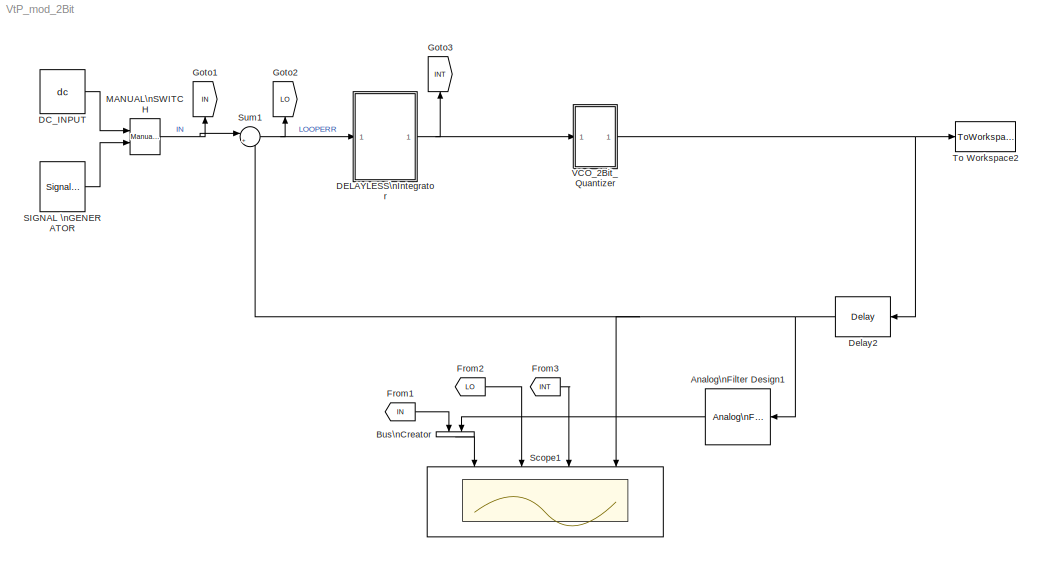
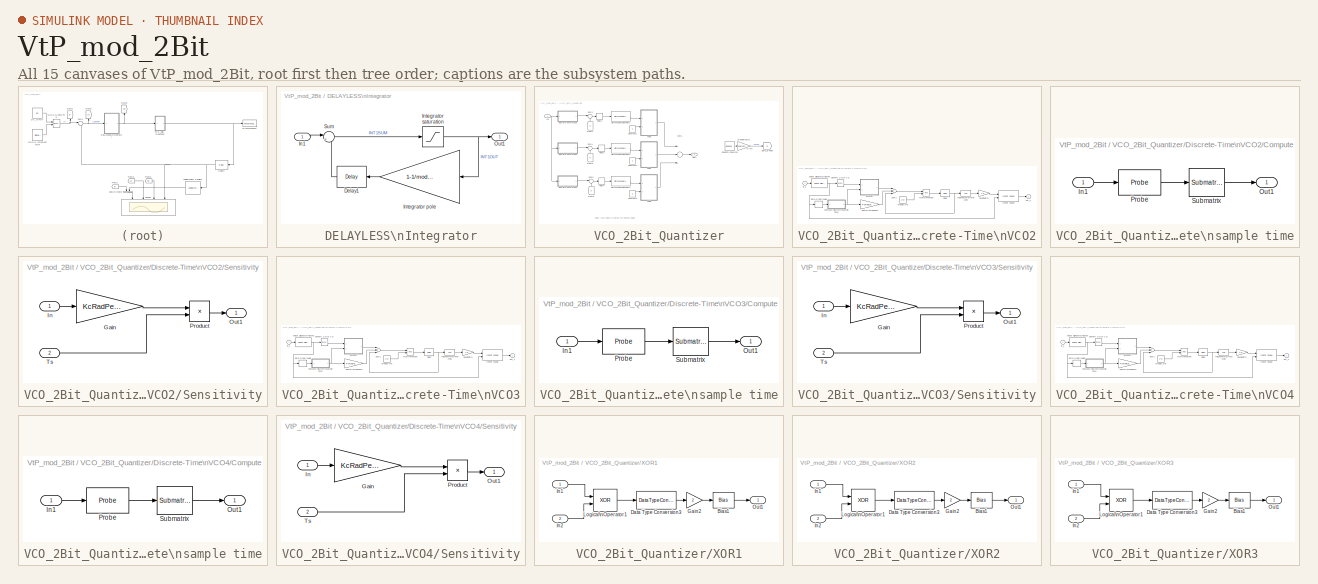
[diagram: thumbnail index - all 15 canvases of the model, root first then tree order]
MODEL VtP_mod_2Bit
KIND model
BLOCK [Reference] Analog\nFilter Design1  REF=dsparch4/Analog\nFilter Design
  N = 8
  Ports = [1, 1]
  Rp = 2
  Rs = 40
  SID = 500
  SourceBlock = dsparch4/Analog\nFilter Design
  SourceType = Analog Filter Design
  Whi = 80
  Wlo = pi*(Fs/OSR)
  filttype = Lowpass
  method = Butterworth
BLOCK [BusCreator] Bus\nCreator
  DisplayOption = bar
  Inputs = 2
  Ports = [2, 1]
  SID = 501
BLOCK [Constant] DC_INPUT
  OutDataTypeStr = double
  SID = 464
  SampleTime = 1/Fs
  Value = dc
  VectorParams1D = off
BLOCK [SubSystem] DELAYLESS\nIntegrator
  FunctionWithSeparateData = off
  MaskHideContents = off
  MinAlgLoopOccurrences = off
  Opaque = off
  Ports = [1, 1]
  PropExecContextOutsideSubsystem = off
  RTWSystemCode = Auto
  RequestExecContextInheritance = off
  SID = 472
BLOCK [Reference] DELAYLESS\nIntegrator/Delay1  REF=dspsigops/Delay
  InputProcessing = Inherited (this choice will be removed - see release notes)
  Ports = [1, 1]
  SID = 474
  SourceBlock = dspsigops/Delay
  SourceType = Delay
  UserData = DataTag0
  UserDataPersistent = on
  delay = 1
  dif_ic_for_ch = off
  dif_ic_for_dly = off
  dly_unit = Samples
  ic = 0
  ic_detail = off
  reset_popup = None
BLOCK [Inport] DELAYLESS\nIntegrator/In1
  IconDisplay = Port number
  SID = 473
BLOCK [Gain] DELAYLESS\nIntegrator/Integrator pole
  AttributesFormatString = (model finite dc gain)
  Gain = 1-1/mod.igain1
  OutDataTypeStr = Inherit: Inherit via internal rule
  ParamDataTypeStr = Inherit: Inherit via internal rule
  SID = 475
  SaturateOnIntegerOverflow = off
BLOCK [Saturate] DELAYLESS\nIntegrator/Integrator saturation
  InputPortMap = u0
  LowerLimit = -(mod.isat1)
  Ports = [1, 1]
  SID = 476
  UpperLimit = mod.isat1
BLOCK [Outport] DELAYLESS\nIntegrator/Out1
  IconDisplay = Port number
  SID = 478
BLOCK [Sum] DELAYLESS\nIntegrator/Sum
  AttributesFormatString = Integrator summer
  IconShape = round
  InputSameDT = off
  Inputs = |++
  OutDataTypeStr = Inherit: Inherit via internal rule
  Ports = [2, 1]
  SID = 477
  SampleTime = 1/Fs
  SaturateOnIntegerOverflow = off
BLOCK [Reference] Delay2  REF=dspsigops/Delay
  InputProcessing = Inherited (this choice will be removed - see release notes)
  Ports = [1, 1]
  SID = 399
  SourceBlock = dspsigops/Delay
  SourceType = Delay
  UserData = DataTag1
  UserDataPersistent = on
  delay = 1
  dif_ic_for_ch = off
  dif_ic_for_dly = off
  dly_unit = Samples
  ic = 0
  ic_detail = off
  reset_popup = None
BLOCK [From] From1
  GotoTag = IN
  SID = 502
BLOCK [From] From2
  GotoTag = LO
  SID = 503
BLOCK [From] From3
  GotoTag = INT
  SID = 504
BLOCK [Goto] Goto1
  GotoTag = IN
  SID = 204
BLOCK [Goto] Goto2
  GotoTag = LO
  SID = 205
BLOCK [Goto] Goto3
  GotoTag = INT
  SID = 508
BLOCK [Reference] MANUAL\nSWITCH  REF=simulink/Signal\nRouting/Manual Switch
  AttributesFormatString = Double click to\\nselect the desired\\ninput
  Ports = [2, 1]
  SID = 465
  SourceBlock = simulink/Signal\nRouting/Manual Switch
  SourceType = Manual Switch
  action = 0
  sw = 0
  varsize = off
BLOCK [SignalGenerator] SIGNAL \nGENERATOR
  Amplitude = sinamp
  Frequency = sinfreq
  Ports = [0, 1]
  SID = 466
  VectorParams1D = off
BLOCK [Scope] Scope1
  DataFormat = StructureWithTime
  Floating = off
  NumInputPorts = 4
  Ports = [4]
  SID = 505
  SampleTime = 0
  ShowLegends = off
  TimeRange = 2.089895171320487e-05
  YMax = 1.1~1.6~1.6~0.1
  YMin = -1.1~-0.6~-0.6~-0.3
  ZoomMode = xonly
BLOCK [Sum] Sum1
  IconShape = round
  InputSameDT = off
  Inputs = |+-
  OutDataTypeStr = Inherit: Inherit via internal rule
  Ports = [2, 1]
  SID = 7
  SampleTime = 1/Fs
  SaturateOnIntegerOverflow = off
BLOCK [ToWorkspace] To Workspace2
  MaxDataPoints = inf
  Ports = [1]
  SID = 208
  SampleTime = -1
  VariableName = mod_out
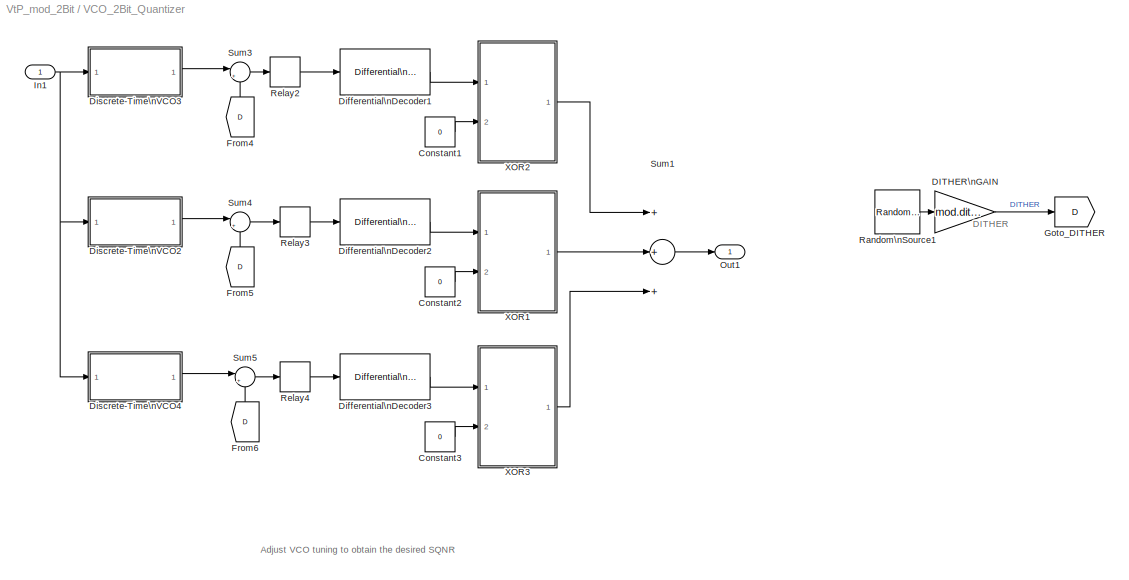
BLOCK [SubSystem] VCO_2Bit_Quantizer
  FunctionWithSeparateData = off
  MaskHideContents = off
  MinAlgLoopOccurrences = off
  Opaque = off
  Ports = [1, 1]
  PropExecContextOutsideSubsystem = off
  RTWSystemCode = Auto
  RequestExecContextInheritance = off
  SID = 564
BLOCK [Constant] VCO_2Bit_Quantizer/Constant1
  OutDataTypeStr = boolean
  SID = 482
  SampleTime = 1/Fs
  Value = 0
  VectorParams1D = off
BLOCK [Constant] VCO_2Bit_Quantizer/Constant2
  OutDataTypeStr = boolean
  SID = 542
  SampleTime = 1/Fs
  Value = 0
  VectorParams1D = off
BLOCK [Constant] VCO_2Bit_Quantizer/Constant3
  OutDataTypeStr = boolean
  SID = 553
  SampleTime = 1/Fs
  Value = 0
  VectorParams1D = off
BLOCK [Gain] VCO_2Bit_Quantizer/DITHER\nGAIN
  Gain = mod.dither
  OutDataTypeStr = Inherit: Inherit via internal rule
  ParamDataTypeStr = Inherit: Inherit via internal rule
  SID = 468
  SampleTime = 1/Fs
  SaturateOnIntegerOverflow = off
BLOCK [Reference] VCO_2Bit_Quantizer/Differential\nDecoder1  REF=commsrccod2/Differential\nDecoder
  InitCond = 0
  Ports = [1, 1]
  SID = 483
  SourceBlock = commsrccod2/Differential\nDecoder
  SourceType = Differential Decoder
BLOCK [Reference] VCO_2Bit_Quantizer/Differential\nDecoder2  REF=commsrccod2/Differential\nDecoder
  InitCond = 0
  Ports = [1, 1]
  SID = 543
  SourceBlock = commsrccod2/Differential\nDecoder
  SourceType = Differential Decoder
BLOCK [Reference] VCO_2Bit_Quantizer/Differential\nDecoder3  REF=commsrccod2/Differential\nDecoder
  InitCond = 0
  Ports = [1, 1]
  SID = 554
  SourceBlock = commsrccod2/Differential\nDecoder
  SourceType = Differential Decoder
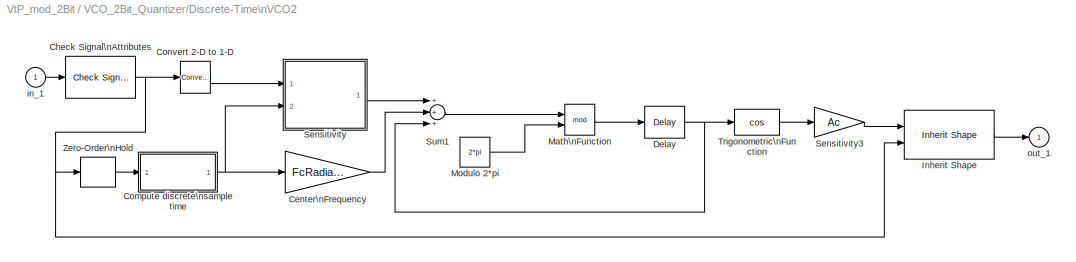
BLOCK [SubSystem] VCO_2Bit_Quantizer/Discrete-Time\nVCO2
  AncestorBlock = commsynccomp2/Discrete-Time\nVCO
  FunctionWithSeparateData = off
  MaskCallbackString = ||||
  MaskCapabilities = commmaskedcaps(gcbh)
  MaskDescription = Generate a discrete-time output signal whose frequency changes in response to the amplitude variations of the input signal. The input signal must be a scalar.
  MaskDisplay = disp('Discrete-Time\\nVCO')
  MaskEnableString = on,on,on,on,on
  MaskHelp = helpview(commbhelp)
  MaskHideContents = off
  MaskIconFrame = on
  MaskIconOpaque = on
  MaskIconRotate = none
  MaskIconUnits = autoscale
  MaskInitialization = if ( (length(Ac)~=1) || (length(Fc)~=1) || (length(Kc)~=1) || (length(Ph)~=1) || (length(ts)~=1) ) \n	error('commblks:DiscTimeVCO:InvalidMaskParams',...\n          'Mask parameters must be scalar values.');\nend\nFcRadians = 2*pi*Fc;\nKcRadPerV = 2*pi*Kc;\n  <repeated x3 — deduplicated; at blocks: Discrete-Time\nVCO2, Discrete-Time\nVCO3, Discrete-Time\nVCO4>
  MaskPortRotate = default
  MaskPromptString = Output amplitude (V):|Quiescent frequency (Hz):|Input sensitivity (Hz/V):|Initial phase (rad):|Sample time (s):
  MaskSelfModifiable = on
  MaskStyleString = edit,edit,edit,edit,edit
  MaskToolTipString = on,on,on,on,on
  MaskTunableValueString = on,on,on,on,on
  MaskType = Discrete-Time VCO
  MaskValueString = sinamp*2|Fs/100|sinfreq*5|1.571|1/Fs
  MaskVariables = Ac=@1;Fc=@2;Kc=@3;Ph=@4;ts=@5;
  MaskVisibilityString = on,on,on,on,on
  MinAlgLoopOccurrences = off
  Opaque = off
  Ports = [1, 1]
  PropExecContextOutsideSubsystem = off
  RTWSystemCode = Auto
  RequestExecContextInheritance = off
  SID = 509
BLOCK [Gain] VCO_2Bit_Quantizer/Discrete-Time\nVCO2/Center\nFrequency
  Gain = FcRadians
  OutDataTypeStr = Inherit: Inherit via back propagation
  ParamDataTypeStr = float('double')
  RndMeth = Nearest
  SID = 509:2
  SampleTime = ts
BLOCK [Reference] VCO_2Bit_Quantizer/Discrete-Time\nVCO2/Check Signal\nAttributes  REF=dspsigattribs/Check Signal\nAttributes
  Complexity = Ignore
  DatatypeCheckMethod = Is...
  DatatypeGeneral = Floating-point
  Dimensions = Scalar (1-D or 2-D)
  DimsCheckMethod = Is...
  DtypeFixedSpecific = Any fixed-point
  DtypeFloatSpecific = Any floating-point
  DtypeIntSpecific = Any integer
  Frame = Ignore
  Ports = [1, 1]
  SID = 509:3
  SampleMode = Discrete
  SigAttribCheckMethod = Does not match attributes exactly
  SourceBlock = dspsigattribs/Check Signal\nAttributes
  SourceType = Check Signal Attributes
BLOCK [SubSystem] VCO_2Bit_Quantizer/Discrete-Time\nVCO2/Compute discrete\nsample time
  FunctionWithSeparateData = off
  MaskHideContents = off
  MinAlgLoopOccurrences = off
  Opaque = off
  Ports = [1, 1]
  PropExecContextOutsideSubsystem = off
  RTWSystemCode = Auto
  RequestExecContextInheritance = off
  SID = 509:4
BLOCK [Inport] VCO_2Bit_Quantizer/Discrete-Time\nVCO2/Compute discrete\nsample time/In1
  IconDisplay = Port number
  SID = 509:5
BLOCK [Outport] VCO_2Bit_Quantizer/Discrete-Time\nVCO2/Compute discrete\nsample time/Out1
  IconDisplay = Port number
  SID = 509:8
BLOCK [Probe] VCO_2Bit_Quantizer/Discrete-Time\nVCO2/Compute discrete\nsample time/Probe
  Ports = [1, 1]
  ProbeComplexSignal = off
  ProbeWidth = off
  SID = 509:6
BLOCK [Reference] VCO_2Bit_Quantizer/Discrete-Time\nVCO2/Compute discrete\nsample time/Submatrix  REF=dspmtrx3/Submatrix
  ColEndIndex = 1
  ColEndMode = Last
  ColSpan = One column
  ColStartIndex = 1
  ColStartMode = First
  Ports = [1, 1]
  RowEndIndex = 1
  RowEndMode = Last
  RowSpan = One row
  RowStartIndex = 1
  RowStartMode = First
  SID = 509:7
  SourceBlock = dspmtrx3/Submatrix
  SourceType = Submatrix
BLOCK [Reference] VCO_2Bit_Quantizer/Discrete-Time\nVCO2/Convert 2-D to 1-D  REF=dspsigattribs/Convert 2-D to 1-D
  Ports = [1, 1]
  SID = 509:9
  SourceBlock = dspsigattribs/Convert 2-D to 1-D
  SourceType = Convert 2-D to 1-D
BLOCK [Reference] VCO_2Bit_Quantizer/Discrete-Time\nVCO2/Delay  REF=dspsigops/Delay
  InputProcessing = Columns as channels (frame based)
  Ports = [1, 1]
  SID = 509:10
  SourceBlock = dspsigops/Delay
  SourceType = Delay
  UserData = DataTag2
  UserDataPersistent = on
  delay = 1
  dif_ic_for_ch = off
  dif_ic_for_dly = off
  dly_unit = Samples
  ic = Ph
  ic_detail = on
  reset_popup = None
BLOCK [Reference] VCO_2Bit_Quantizer/Discrete-Time\nVCO2/Inherit Shape  REF=commblksprivate/Inherit Shape
  Ports = [2, 1]
  SID = 509:11
  SourceBlock = commblksprivate/Inherit Shape
  SourceType = Inherit Shape
BLOCK [Math] VCO_2Bit_Quantizer/Discrete-Time\nVCO2/Math\nFunction
  Operator = mod
  Ports = [2, 1]
  SID = 509:12
BLOCK [Constant] VCO_2Bit_Quantizer/Discrete-Time\nVCO2/Modulo 2*pi
  OutDataTypeStr = Inherit: Inherit via back propagation
  SID = 509:13
  SampleTime = ts
  Value = 2*pi
BLOCK [SubSystem] VCO_2Bit_Quantizer/Discrete-Time\nVCO2/Sensitivity
  FunctionWithSeparateData = off
  MaskHideContents = off
  MinAlgLoopOccurrences = off
  Opaque = off
  Ports = [2, 1]
  PropExecContextOutsideSubsystem = off
  RTWSystemCode = Auto
  RequestExecContextInheritance = off
  SID = 509:14
BLOCK [Gain] VCO_2Bit_Quantizer/Discrete-Time\nVCO2/Sensitivity/Gain
  Gain = KcRadPerV
  ParamDataTypeStr = float('double')
  SID = 509:17
BLOCK [Inport] VCO_2Bit_Quantizer/Discrete-Time\nVCO2/Sensitivity/In
  IconDisplay = Port number
  SID = 509:15
BLOCK [Outport] VCO_2Bit_Quantizer/Discrete-Time\nVCO2/Sensitivity/Out1
  IconDisplay = Port number
  SID = 509:19
BLOCK [Product] VCO_2Bit_Quantizer/Discrete-Time\nVCO2/Sensitivity/Product
  InputSameDT = off
  Ports = [2, 1]
  RndMeth = Nearest
  SID = 509:18
BLOCK [Inport] VCO_2Bit_Quantizer/Discrete-Time\nVCO2/Sensitivity/Ts
  IconDisplay = Port number
  Port = 2
  SID = 509:16
BLOCK [Gain] VCO_2Bit_Quantizer/Discrete-Time\nVCO2/Sensitivity3
  Gain = Ac
  SID = 509:20
BLOCK [Sum] VCO_2Bit_Quantizer/Discrete-Time\nVCO2/Sum1
  Inputs = +++
  Ports = [3, 1]
  SID = 509:21
BLOCK [Trigonometry] VCO_2Bit_Quantizer/Discrete-Time\nVCO2/Trigonometric\nFunction
  Operator = cos
  Ports = [1, 1]
  SID = 509:22
BLOCK [ZeroOrderHold] VCO_2Bit_Quantizer/Discrete-Time\nVCO2/Zero-Order\nHold
  SID = 509:23
  SampleTime = ts
BLOCK [Inport] VCO_2Bit_Quantizer/Discrete-Time\nVCO2/in_1
  IconDisplay = Port number
  SID = 509:1
BLOCK [Outport] VCO_2Bit_Quantizer/Discrete-Time\nVCO2/out_1
  IconDisplay = Port number
  InitialOutput = 0
  SID = 509:24
BLOCK [SubSystem] VCO_2Bit_Quantizer/Discrete-Time\nVCO3
  AncestorBlock = commsynccomp2/Discrete-Time\nVCO
  FunctionWithSeparateData = off
  MaskCallbackString = ||||
  MaskCapabilities = commmaskedcaps(gcbh)
  MaskDescription = Generate a discrete-time output signal whose frequency changes in response to the amplitude variations of the input signal. The input signal must be a scalar.
  MaskDisplay = disp('Discrete-Time\\nVCO')
  MaskEnableString = on,on,on,on,on
  MaskHelp = helpview(commbhelp)
  MaskHideContents = off
  MaskIconFrame = on
  MaskIconOpaque = on
  MaskIconRotate = none
  MaskIconUnits = autoscale
  MaskPortRotate = default
  MaskPromptString = Output amplitude (V):|Quiescent frequency (Hz):|Input sensitivity (Hz/V):|Initial phase (rad):|Sample time (s):
  MaskSelfModifiable = on
  MaskStyleString = edit,edit,edit,edit,edit
  MaskToolTipString = on,on,on,on,on
  MaskTunableValueString = on,on,on,on,on
  MaskType = Discrete-Time VCO
  MaskValueString = 7|Fs/100|sinfreq*5|0|1/Fs
  MaskVariables = Ac=@1;Fc=@2;Kc=@3;Ph=@4;ts=@5;
  MaskVisibilityString = on,on,on,on,on
  MinAlgLoopOccurrences = off
  Opaque = off
  Ports = [1, 1]
  PropExecContextOutsideSubsystem = off
  RTWSystemCode = Auto
  RequestExecContextInheritance = off
  SID = 510
BLOCK [Gain] VCO_2Bit_Quantizer/Discrete-Time\nVCO3/Center\nFrequency
  Gain = FcRadians
  OutDataTypeStr = Inherit: Inherit via back propagation
  ParamDataTypeStr = float('double')
  RndMeth = Nearest
  SID = 510:2
  SampleTime = ts
BLOCK [Reference] VCO_2Bit_Quantizer/Discrete-Time\nVCO3/Check Signal\nAttributes  REF=dspsigattribs/Check Signal\nAttributes
  Complexity = Ignore
  DatatypeCheckMethod = Is...
  DatatypeGeneral = Floating-point
  Dimensions = Scalar (1-D or 2-D)
  DimsCheckMethod = Is...
  DtypeFixedSpecific = Any fixed-point
  DtypeFloatSpecific = Any floating-point
  DtypeIntSpecific = Any integer
  Frame = Ignore
  Ports = [1, 1]
  SID = 510:3
  SampleMode = Discrete
  SigAttribCheckMethod = Does not match attributes exactly
  SourceBlock = dspsigattribs/Check Signal\nAttributes
  SourceType = Check Signal Attributes
BLOCK [SubSystem] VCO_2Bit_Quantizer/Discrete-Time\nVCO3/Compute discrete\nsample time
  FunctionWithSeparateData = off
  MaskHideContents = off
  MinAlgLoopOccurrences = off
  Opaque = off
  Ports = [1, 1]
  PropExecContextOutsideSubsystem = off
  RTWSystemCode = Auto
  RequestExecContextInheritance = off
  SID = 510:4
BLOCK [Inport] VCO_2Bit_Quantizer/Discrete-Time\nVCO3/Compute discrete\nsample time/In1
  IconDisplay = Port number
  SID = 510:5
BLOCK [Outport] VCO_2Bit_Quantizer/Discrete-Time\nVCO3/Compute discrete\nsample time/Out1
  IconDisplay = Port number
  SID = 510:8
BLOCK [Probe] VCO_2Bit_Quantizer/Discrete-Time\nVCO3/Compute discrete\nsample time/Probe
  Ports = [1, 1]
  ProbeComplexSignal = off
  ProbeWidth = off
  SID = 510:6
BLOCK [Reference] VCO_2Bit_Quantizer/Discrete-Time\nVCO3/Compute discrete\nsample time/Submatrix  REF=dspmtrx3/Submatrix
  ColEndIndex = 1
  ColEndMode = Last
  ColSpan = One column
  ColStartIndex = 1
  ColStartMode = First
  Ports = [1, 1]
  RowEndIndex = 1
  RowEndMode = Last
  RowSpan = One row
  RowStartIndex = 1
  RowStartMode = First
  SID = 510:7
  SourceBlock = dspmtrx3/Submatrix
  SourceType = Submatrix
BLOCK [Reference] VCO_2Bit_Quantizer/Discrete-Time\nVCO3/Convert 2-D to 1-D  REF=dspsigattribs/Convert 2-D to 1-D
  Ports = [1, 1]
  SID = 510:9
  SourceBlock = dspsigattribs/Convert 2-D to 1-D
  SourceType = Convert 2-D to 1-D
BLOCK [Reference] VCO_2Bit_Quantizer/Discrete-Time\nVCO3/Delay  REF=dspsigops/Delay
  InputProcessing = Columns as channels (frame based)
  Ports = [1, 1]
  SID = 510:10
  SourceBlock = dspsigops/Delay
  SourceType = Delay
  UserData = DataTag3
  UserDataPersistent = on
  delay = 1
  dif_ic_for_ch = off
  dif_ic_for_dly = off
  dly_unit = Samples
  ic = Ph
  ic_detail = on
  reset_popup = None
BLOCK [Reference] VCO_2Bit_Quantizer/Discrete-Time\nVCO3/Inherit Shape  REF=commblksprivate/Inherit Shape
  Ports = [2, 1]
  SID = 510:11
  SourceBlock = commblksprivate/Inherit Shape
  SourceType = Inherit Shape
BLOCK [Math] VCO_2Bit_Quantizer/Discrete-Time\nVCO3/Math\nFunction
  Operator = mod
  Ports = [2, 1]
  SID = 510:12
BLOCK [Constant] VCO_2Bit_Quantizer/Discrete-Time\nVCO3/Modulo 2*pi
  OutDataTypeStr = Inherit: Inherit via back propagation
  SID = 510:13
  SampleTime = ts
  Value = 2*pi
BLOCK [SubSystem] VCO_2Bit_Quantizer/Discrete-Time\nVCO3/Sensitivity
  FunctionWithSeparateData = off
  MaskHideContents = off
  MinAlgLoopOccurrences = off
  Opaque = off
  Ports = [2, 1]
  PropExecContextOutsideSubsystem = off
  RTWSystemCode = Auto
  RequestExecContextInheritance = off
  SID = 510:14
BLOCK [Gain] VCO_2Bit_Quantizer/Discrete-Time\nVCO3/Sensitivity/Gain
  Gain = KcRadPerV
  ParamDataTypeStr = float('double')
  SID = 510:17
BLOCK [Inport] VCO_2Bit_Quantizer/Discrete-Time\nVCO3/Sensitivity/In
  IconDisplay = Port number
  SID = 510:15
BLOCK [Outport] VCO_2Bit_Quantizer/Discrete-Time\nVCO3/Sensitivity/Out1
  IconDisplay = Port number
  SID = 510:19
BLOCK [Product] VCO_2Bit_Quantizer/Discrete-Time\nVCO3/Sensitivity/Product
  InputSameDT = off
  Ports = [2, 1]
  RndMeth = Nearest
  SID = 510:18
BLOCK [Inport] VCO_2Bit_Quantizer/Discrete-Time\nVCO3/Sensitivity/Ts
  IconDisplay = Port number
  Port = 2
  SID = 510:16
BLOCK [Gain] VCO_2Bit_Quantizer/Discrete-Time\nVCO3/Sensitivity3
  Gain = Ac
  SID = 510:20
BLOCK [Sum] VCO_2Bit_Quantizer/Discrete-Time\nVCO3/Sum1
  Inputs = +++
  Ports = [3, 1]
  SID = 510:21
BLOCK [Trigonometry] VCO_2Bit_Quantizer/Discrete-Time\nVCO3/Trigonometric\nFunction
  Operator = cos
  Ports = [1, 1]
  SID = 510:22
BLOCK [ZeroOrderHold] VCO_2Bit_Quantizer/Discrete-Time\nVCO3/Zero-Order\nHold
  SID = 510:23
  SampleTime = ts
BLOCK [Inport] VCO_2Bit_Quantizer/Discrete-Time\nVCO3/in_1
  IconDisplay = Port number
  SID = 510:1
BLOCK [Outport] VCO_2Bit_Quantizer/Discrete-Time\nVCO3/out_1
  IconDisplay = Port number
  InitialOutput = 0
  SID = 510:24
BLOCK [SubSystem] VCO_2Bit_Quantizer/Discrete-Time\nVCO4
  AncestorBlock = commsynccomp2/Discrete-Time\nVCO
  FunctionWithSeparateData = off
  MaskCallbackString = ||||
  MaskCapabilities = commmaskedcaps(gcbh)
  MaskDescription = Generate a discrete-time output signal whose frequency changes in response to the amplitude variations of the input signal. The input signal must be a scalar.
  MaskDisplay = disp('Discrete-Time\\nVCO')
  MaskEnableString = on,on,on,on,on
  MaskHelp = helpview(commbhelp)
  MaskHideContents = off
  MaskIconFrame = on
  MaskIconOpaque = on
  MaskIconRotate = none
  MaskIconUnits = autoscale
  MaskPortRotate = default
  MaskPromptString = Output amplitude (V):|Quiescent frequency (Hz):|Input sensitivity (Hz/V):|Initial phase (rad):|Sample time (s):
  MaskSelfModifiable = on
  MaskStyleString = edit,edit,edit,edit,edit
  MaskToolTipString = on,on,on,on,on
  MaskTunableValueString = on,on,on,on,on
  MaskType = Discrete-Time VCO
  MaskValueString = sinamp*2|Fs/100|sinfreq*5|3.14|1/Fs
  MaskVariables = Ac=@1;Fc=@2;Kc=@3;Ph=@4;ts=@5;
  MaskVisibilityString = on,on,on,on,on
  MinAlgLoopOccurrences = off
  Opaque = off
  Ports = [1, 1]
  PropExecContextOutsideSubsystem = off
  RTWSystemCode = Auto
  RequestExecContextInheritance = off
  SID = 511
BLOCK [Gain] VCO_2Bit_Quantizer/Discrete-Time\nVCO4/Center\nFrequency
  Gain = FcRadians
  OutDataTypeStr = Inherit: Inherit via back propagation
  ParamDataTypeStr = float('double')
  RndMeth = Nearest
  SID = 511:2
  SampleTime = ts
BLOCK [Reference] VCO_2Bit_Quantizer/Discrete-Time\nVCO4/Check Signal\nAttributes  REF=dspsigattribs/Check Signal\nAttributes
  Complexity = Ignore
  DatatypeCheckMethod = Is...
  DatatypeGeneral = Floating-point
  Dimensions = Scalar (1-D or 2-D)
  DimsCheckMethod = Is...
  DtypeFixedSpecific = Any fixed-point
  DtypeFloatSpecific = Any floating-point
  DtypeIntSpecific = Any integer
  Frame = Ignore
  Ports = [1, 1]
  SID = 511:3
  SampleMode = Discrete
  SigAttribCheckMethod = Does not match attributes exactly
  SourceBlock = dspsigattribs/Check Signal\nAttributes
  SourceType = Check Signal Attributes
BLOCK [SubSystem] VCO_2Bit_Quantizer/Discrete-Time\nVCO4/Compute discrete\nsample time
  FunctionWithSeparateData = off
  MaskHideContents = off
  MinAlgLoopOccurrences = off
  Opaque = off
  Ports = [1, 1]
  PropExecContextOutsideSubsystem = off
  RTWSystemCode = Auto
  RequestExecContextInheritance = off
  SID = 511:4
BLOCK [Inport] VCO_2Bit_Quantizer/Discrete-Time\nVCO4/Compute discrete\nsample time/In1
  IconDisplay = Port number
  SID = 511:5
BLOCK [Outport] VCO_2Bit_Quantizer/Discrete-Time\nVCO4/Compute discrete\nsample time/Out1
  IconDisplay = Port number
  SID = 511:8
BLOCK [Probe] VCO_2Bit_Quantizer/Discrete-Time\nVCO4/Compute discrete\nsample time/Probe
  Ports = [1, 1]
  ProbeComplexSignal = off
  ProbeWidth = off
  SID = 511:6
BLOCK [Reference] VCO_2Bit_Quantizer/Discrete-Time\nVCO4/Compute discrete\nsample time/Submatrix  REF=dspmtrx3/Submatrix
  ColEndIndex = 1
  ColEndMode = Last
  ColSpan = One column
  ColStartIndex = 1
  ColStartMode = First
  Ports = [1, 1]
  RowEndIndex = 1
  RowEndMode = Last
  RowSpan = One row
  RowStartIndex = 1
  RowStartMode = First
  SID = 511:7
  SourceBlock = dspmtrx3/Submatrix
  SourceType = Submatrix
BLOCK [Reference] VCO_2Bit_Quantizer/Discrete-Time\nVCO4/Convert 2-D to 1-D  REF=dspsigattribs/Convert 2-D to 1-D
  Ports = [1, 1]
  SID = 511:9
  SourceBlock = dspsigattribs/Convert 2-D to 1-D
  SourceType = Convert 2-D to 1-D
BLOCK [Reference] VCO_2Bit_Quantizer/Discrete-Time\nVCO4/Delay  REF=dspsigops/Delay
  InputProcessing = Columns as channels (frame based)
  Ports = [1, 1]
  SID = 511:10
  SourceBlock = dspsigops/Delay
  SourceType = Delay
  UserData = DataTag4
  UserDataPersistent = on
  delay = 1
  dif_ic_for_ch = off
  dif_ic_for_dly = off
  dly_unit = Samples
  ic = Ph
  ic_detail = on
  reset_popup = None
BLOCK [Reference] VCO_2Bit_Quantizer/Discrete-Time\nVCO4/Inherit Shape  REF=commblksprivate/Inherit Shape
  Ports = [2, 1]
  SID = 511:11
  SourceBlock = commblksprivate/Inherit Shape
  SourceType = Inherit Shape
BLOCK [Math] VCO_2Bit_Quantizer/Discrete-Time\nVCO4/Math\nFunction
  Operator = mod
  Ports = [2, 1]
  SID = 511:12
BLOCK [Constant] VCO_2Bit_Quantizer/Discrete-Time\nVCO4/Modulo 2*pi
  OutDataTypeStr = Inherit: Inherit via back propagation
  SID = 511:13
  SampleTime = ts
  Value = 2*pi
BLOCK [SubSystem] VCO_2Bit_Quantizer/Discrete-Time\nVCO4/Sensitivity
  FunctionWithSeparateData = off
  MaskHideContents = off
  MinAlgLoopOccurrences = off
  Opaque = off
  Ports = [2, 1]
  PropExecContextOutsideSubsystem = off
  RTWSystemCode = Auto
  RequestExecContextInheritance = off
  SID = 511:14
BLOCK [Gain] VCO_2Bit_Quantizer/Discrete-Time\nVCO4/Sensitivity/Gain
  Gain = KcRadPerV
  ParamDataTypeStr = float('double')
  SID = 511:17
BLOCK [Inport] VCO_2Bit_Quantizer/Discrete-Time\nVCO4/Sensitivity/In
  IconDisplay = Port number
  SID = 511:15
BLOCK [Outport] VCO_2Bit_Quantizer/Discrete-Time\nVCO4/Sensitivity/Out1
  IconDisplay = Port number
  SID = 511:19
BLOCK [Product] VCO_2Bit_Quantizer/Discrete-Time\nVCO4/Sensitivity/Product
  InputSameDT = off
  Ports = [2, 1]
  RndMeth = Nearest
  SID = 511:18
BLOCK [Inport] VCO_2Bit_Quantizer/Discrete-Time\nVCO4/Sensitivity/Ts
  IconDisplay = Port number
  Port = 2
  SID = 511:16
BLOCK [Gain] VCO_2Bit_Quantizer/Discrete-Time\nVCO4/Sensitivity3
  Gain = Ac
  SID = 511:20
BLOCK [Sum] VCO_2Bit_Quantizer/Discrete-Time\nVCO4/Sum1
  Inputs = +++
  Ports = [3, 1]
  SID = 511:21
BLOCK [Trigonometry] VCO_2Bit_Quantizer/Discrete-Time\nVCO4/Trigonometric\nFunction
  Operator = cos
  Ports = [1, 1]
  SID = 511:22
BLOCK [ZeroOrderHold] VCO_2Bit_Quantizer/Discrete-Time\nVCO4/Zero-Order\nHold
  SID = 511:23
  SampleTime = ts
BLOCK [Inport] VCO_2Bit_Quantizer/Discrete-Time\nVCO4/in_1
  IconDisplay = Port number
  SID = 511:1
BLOCK [Outport] VCO_2Bit_Quantizer/Discrete-Time\nVCO4/out_1
  IconDisplay = Port number
  InitialOutput = 0
  SID = 511:24
BLOCK [From] VCO_2Bit_Quantizer/From4
  GotoTag = D
  SID = 512
BLOCK [From] VCO_2Bit_Quantizer/From5
  GotoTag = D
  SID = 513
BLOCK [From] VCO_2Bit_Quantizer/From6
  GotoTag = D
  SID = 514
BLOCK [Goto] VCO_2Bit_Quantizer/Goto_DITHER
  GotoTag = D
  SID = 469
BLOCK [Inport] VCO_2Bit_Quantizer/In1
  IconDisplay = Port number
  SID = 565
BLOCK [Outport] VCO_2Bit_Quantizer/Out1
  IconDisplay = Port number
  SID = 566
BLOCK [Reference] VCO_2Bit_Quantizer/Random\nSource1  REF=dspsrcs4/Random\nSource
  CltLength = 12
  DataType = Double
  IsInherit = off
  MaxVal = 1
  MeanVal = 0
  MinVal = -1
  NormMethod = Ziggurat
  OutComplex = Real
  Ports = [0, 1]
  RepMode = Not repeatable
  SID = 470
  SampFrame = 1
  SampMode = Discrete
  SampTime = 1/Fs
  SourceBlock = dspsrcs4/Random\nSource
  SourceType = Random Source
  SrcType = Uniform
  UserData = DataTag5
  UserDataPersistent = on
  VarVal = 1
  rawSeed = 1
BLOCK [Relay] VCO_2Bit_Quantizer/Relay2
  InputProcessing = Elements as channels (sample based)
  SID = 539
  SampleTime = 1/Fs
BLOCK [Relay] VCO_2Bit_Quantizer/Relay3
  InputProcessing = Elements as channels (sample based)
  SID = 540
  SampleTime = 1/Fs
BLOCK [Relay] VCO_2Bit_Quantizer/Relay4
  InputProcessing = Elements as channels (sample based)
  SID = 541
  SampleTime = 1/Fs
BLOCK [Sum] VCO_2Bit_Quantizer/Sum1
  InputSameDT = off
  Inputs = +++
  OutDataTypeStr = Inherit: Inherit via internal rule
  Ports = [3, 1]
  SID = 571
  SampleTime = 1/Fs
  SaturateOnIntegerOverflow = off
BLOCK [Sum] VCO_2Bit_Quantizer/Sum3
  IconShape = round
  InputSameDT = off
  Inputs = |++
  OutDataTypeStr = Inherit: Inherit via internal rule
  Ports = [2, 1]
  SID = 536
  SaturateOnIntegerOverflow = off
BLOCK [Sum] VCO_2Bit_Quantizer/Sum4
  IconShape = round
  InputSameDT = off
  Inputs = |++
  OutDataTypeStr = Inherit: Inherit via internal rule
  Ports = [2, 1]
  SID = 537
  SaturateOnIntegerOverflow = off
BLOCK [Sum] VCO_2Bit_Quantizer/Sum5
  IconShape = round
  InputSameDT = off
  Inputs = |++
  OutDataTypeStr = Inherit: Inherit via internal rule
  Ports = [2, 1]
  SID = 538
  SaturateOnIntegerOverflow = off
BLOCK [SubSystem] VCO_2Bit_Quantizer/XOR1
  FunctionWithSeparateData = off
  MaskHideContents = off
  MinAlgLoopOccurrences = off
  Opaque = off
  Ports = [2, 1]
  PropExecContextOutsideSubsystem = off
  RTWSystemCode = Auto
  RequestExecContextInheritance = off
  SID = 544
BLOCK [Bias] VCO_2Bit_Quantizer/XOR1/Bias1
  Bias = -1
  SID = 547
  SaturateOnIntegerOverflow = off
BLOCK [DataTypeConversion] VCO_2Bit_Quantizer/XOR1/Data Type Conversion3
  OutDataTypeStr = double
  RndMeth = Floor
  SID = 548
  SampleTime = 1/Fs
  SaturateOnIntegerOverflow = off
BLOCK [Gain] VCO_2Bit_Quantizer/XOR1/Gain2
  Gain = 2
  OutDataTypeStr = Inherit: Inherit via internal rule
  ParamDataTypeStr = Inherit: Inherit via internal rule
  SID = 549
  SampleTime = 1/Fs
  SaturateOnIntegerOverflow = off
BLOCK [Inport] VCO_2Bit_Quantizer/XOR1/In1
  IconDisplay = Port number
  SID = 545
BLOCK [Inport] VCO_2Bit_Quantizer/XOR1/In2
  IconDisplay = Port number
  Port = 2
  SID = 546
BLOCK [Logic] VCO_2Bit_Quantizer/XOR1/Logical\nOperator1
  AllPortsSameDT = off
  IconShape = distinctive
  Operator = XOR
  OutDataTypeStr = boolean
  Ports = [2, 1]
  SID = 550
  SampleTime = 1/Fs
BLOCK [Outport] VCO_2Bit_Quantizer/XOR1/Out1
  IconDisplay = Port number
  SID = 551
BLOCK [SubSystem] VCO_2Bit_Quantizer/XOR2
  FunctionWithSeparateData = off
  MaskHideContents = off
  MinAlgLoopOccurrences = off
  Opaque = off
  Ports = [2, 1]
  PropExecContextOutsideSubsystem = off
  RTWSystemCode = Auto
  RequestExecContextInheritance = off
  SID = 486
BLOCK [Bias] VCO_2Bit_Quantizer/XOR2/Bias1
  Bias = -1
  SID = 489
  SaturateOnIntegerOverflow = off
BLOCK [DataTypeConversion] VCO_2Bit_Quantizer/XOR2/Data Type Conversion3
  OutDataTypeStr = double
  RndMeth = Floor
  SID = 490
  SampleTime = 1/Fs
  SaturateOnIntegerOverflow = off
BLOCK [Gain] VCO_2Bit_Quantizer/XOR2/Gain2
  Gain = 2
  OutDataTypeStr = Inherit: Inherit via internal rule
  ParamDataTypeStr = Inherit: Inherit via internal rule
  SID = 491
  SampleTime = 1/Fs
  SaturateOnIntegerOverflow = off
BLOCK [Inport] VCO_2Bit_Quantizer/XOR2/In1
  IconDisplay = Port number
  SID = 487
BLOCK [Inport] VCO_2Bit_Quantizer/XOR2/In2
  IconDisplay = Port number
  Port = 2
  SID = 488
BLOCK [Logic] VCO_2Bit_Quantizer/XOR2/Logical\nOperator1
  AllPortsSameDT = off
  IconShape = distinctive
  Operator = XOR
  OutDataTypeStr = boolean
  Ports = [2, 1]
  SID = 492
  SampleTime = 1/Fs
BLOCK [Outport] VCO_2Bit_Quantizer/XOR2/Out1
  IconDisplay = Port number
  SID = 493
BLOCK [SubSystem] VCO_2Bit_Quantizer/XOR3
  FunctionWithSeparateData = off
  MaskHideContents = off
  MinAlgLoopOccurrences = off
  Opaque = off
  Ports = [2, 1]
  PropExecContextOutsideSubsystem = off
  RTWSystemCode = Auto
  RequestExecContextInheritance = off
  SID = 555
BLOCK [Bias] VCO_2Bit_Quantizer/XOR3/Bias1
  Bias = -1
  SID = 558
  SaturateOnIntegerOverflow = off
BLOCK [DataTypeConversion] VCO_2Bit_Quantizer/XOR3/Data Type Conversion3
  OutDataTypeStr = double
  RndMeth = Floor
  SID = 559
  SampleTime = 1/Fs
  SaturateOnIntegerOverflow = off
BLOCK [Gain] VCO_2Bit_Quantizer/XOR3/Gain2
  Gain = 2
  OutDataTypeStr = Inherit: Inherit via internal rule
  ParamDataTypeStr = Inherit: Inherit via internal rule
  SID = 560
  SampleTime = 1/Fs
  SaturateOnIntegerOverflow = off
BLOCK [Inport] VCO_2Bit_Quantizer/XOR3/In1
  IconDisplay = Port number
  SID = 556
BLOCK [Inport] VCO_2Bit_Quantizer/XOR3/In2
  IconDisplay = Port number
  Port = 2
  SID = 557
BLOCK [Logic] VCO_2Bit_Quantizer/XOR3/Logical\nOperator1
  AllPortsSameDT = off
  IconShape = distinctive
  Operator = XOR
  OutDataTypeStr = boolean
  Ports = [2, 1]
  SID = 561
  SampleTime = 1/Fs
BLOCK [Outport] VCO_2Bit_Quantizer/XOR3/Out1
  IconDisplay = Port number
  SID = 562
ANNOTATION VCO_2Bit_Quantizer: DITHER \n\n\n\n\n\n
ANNOTATION VCO_2Bit_Quantizer: Adjust VCO tuning to obtain the desired SQNR
LINE Analog\nFilter Design1:1 -> Bus\nCreator:2
LINE Bus\nCreator:1 -> Scope1:1
LINE DC_INPUT:1 -> MANUAL\nSWITCH:1
LINE DELAYLESS\nIntegrator/Delay1:1 -> DELAYLESS\nIntegrator/Sum:2
LINE DELAYLESS\nIntegrator/In1:1 -> DELAYLESS\nIntegrator/Sum:1
LINE DELAYLESS\nIntegrator/Integrator pole:1 -> DELAYLESS\nIntegrator/Delay1:1
NET DELAYLESS\nIntegrator/Integrator saturation:1 -> DELAYLESS\nIntegrator/Integrator pole:1, DELAYLESS\nIntegrator/Out1:1
LINE DELAYLESS\nIntegrator/Sum:1 -> DELAYLESS\nIntegrator/Integrator saturation:1
NET DELAYLESS\nIntegrator:1 -> Goto3:1, VCO_2Bit_Quantizer:1
NET Delay2:1 -> Analog\nFilter Design1:1, Scope1:4, Sum1:2
LINE From1:1 -> Bus\nCreator:1
LINE From2:1 -> Scope1:2
LINE From3:1 -> Scope1:3
NET MANUAL\nSWITCH:1 -> Goto1:1, Sum1:1
LINE SIGNAL \nGENERATOR:1 -> MANUAL\nSWITCH:2
NET Sum1:1 -> DELAYLESS\nIntegrator:1, Goto2:1
LINE VCO_2Bit_Quantizer/Constant1:1 -> VCO_2Bit_Quantizer/XOR2:2
LINE VCO_2Bit_Quantizer/Constant2:1 -> VCO_2Bit_Quantizer/XOR1:2
LINE VCO_2Bit_Quantizer/Constant3:1 -> VCO_2Bit_Quantizer/XOR3:2
LINE VCO_2Bit_Quantizer/DITHER\nGAIN:1 -> VCO_2Bit_Quantizer/Goto_DITHER:1
LINE VCO_2Bit_Quantizer/Differential\nDecoder1:1 -> VCO_2Bit_Quantizer/XOR2:1
LINE VCO_2Bit_Quantizer/Differential\nDecoder2:1 -> VCO_2Bit_Quantizer/XOR1:1
LINE VCO_2Bit_Quantizer/Differential\nDecoder3:1 -> VCO_2Bit_Quantizer/XOR3:1
LINE VCO_2Bit_Quantizer/Discrete-Time\nVCO2/Center\nFrequency:1 -> VCO_2Bit_Quantizer/Discrete-Time\nVCO2/Sum1:2
NET VCO_2Bit_Quantizer/Discrete-Time\nVCO2/Check Signal\nAttributes:1 -> VCO_2Bit_Quantizer/Discrete-Time\nVCO2/Convert 2-D to 1-D:1, VCO_2Bit_Quantizer/Discrete-Time\nVCO2/Inherit Shape:2, VCO_2Bit_Quantizer/Discrete-Time\nVCO2/Zero-Order\nHold:1
LINE VCO_2Bit_Quantizer/Discrete-Time\nVCO2/Compute discrete\nsample time/In1:1 -> VCO_2Bit_Quantizer/Discrete-Time\nVCO2/Compute discrete\nsample time/Probe:1
LINE VCO_2Bit_Quantizer/Discrete-Time\nVCO2/Compute discrete\nsample time/Probe:1 -> VCO_2Bit_Quantizer/Discrete-Time\nVCO2/Compute discrete\nsample time/Submatrix:1
LINE VCO_2Bit_Quantizer/Discrete-Time\nVCO2/Compute discrete\nsample time/Submatrix:1 -> VCO_2Bit_Quantizer/Discrete-Time\nVCO2/Compute discrete\nsample time/Out1:1
NET VCO_2Bit_Quantizer/Discrete-Time\nVCO2/Compute discrete\nsample time:1 -> VCO_2Bit_Quantizer/Discrete-Time\nVCO2/Center\nFrequency:1, VCO_2Bit_Quantizer/Discrete-Time\nVCO2/Sensitivity:2
LINE VCO_2Bit_Quantizer/Discrete-Time\nVCO2/Convert 2-D to 1-D:1 -> VCO_2Bit_Quantizer/Discrete-Time\nVCO2/Sensitivity:1
NET VCO_2Bit_Quantizer/Discrete-Time\nVCO2/Delay:1 -> VCO_2Bit_Quantizer/Discrete-Time\nVCO2/Sum1:3, VCO_2Bit_Quantizer/Discrete-Time\nVCO2/Trigonometric\nFunction:1
LINE VCO_2Bit_Quantizer/Discrete-Time\nVCO2/Inherit Shape:1 -> VCO_2Bit_Quantizer/Discrete-Time\nVCO2/out_1:1
LINE VCO_2Bit_Quantizer/Discrete-Time\nVCO2/Math\nFunction:1 -> VCO_2Bit_Quantizer/Discrete-Time\nVCO2/Delay:1
LINE VCO_2Bit_Quantizer/Discrete-Time\nVCO2/Modulo 2*pi:1 -> VCO_2Bit_Quantizer/Discrete-Time\nVCO2/Math\nFunction:2
LINE VCO_2Bit_Quantizer/Discrete-Time\nVCO2/Sensitivity/Gain:1 -> VCO_2Bit_Quantizer/Discrete-Time\nVCO2/Sensitivity/Product:1
LINE VCO_2Bit_Quantizer/Discrete-Time\nVCO2/Sensitivity/In:1 -> VCO_2Bit_Quantizer/Discrete-Time\nVCO2/Sensitivity/Gain:1
LINE VCO_2Bit_Quantizer/Discrete-Time\nVCO2/Sensitivity/Product:1 -> VCO_2Bit_Quantizer/Discrete-Time\nVCO2/Sensitivity/Out1:1
LINE VCO_2Bit_Quantizer/Discrete-Time\nVCO2/Sensitivity/Ts:1 -> VCO_2Bit_Quantizer/Discrete-Time\nVCO2/Sensitivity/Product:2
LINE VCO_2Bit_Quantizer/Discrete-Time\nVCO2/Sensitivity3:1 -> VCO_2Bit_Quantizer/Discrete-Time\nVCO2/Inherit Shape:1
LINE VCO_2Bit_Quantizer/Discrete-Time\nVCO2/Sensitivity:1 -> VCO_2Bit_Quantizer/Discrete-Time\nVCO2/Sum1:1
LINE VCO_2Bit_Quantizer/Discrete-Time\nVCO2/Sum1:1 -> VCO_2Bit_Quantizer/Discrete-Time\nVCO2/Math\nFunction:1
LINE VCO_2Bit_Quantizer/Discrete-Time\nVCO2/Trigonometric\nFunction:1 -> VCO_2Bit_Quantizer/Discrete-Time\nVCO2/Sensitivity3:1
LINE VCO_2Bit_Quantizer/Discrete-Time\nVCO2/Zero-Order\nHold:1 -> VCO_2Bit_Quantizer/Discrete-Time\nVCO2/Compute discrete\nsample time:1
LINE VCO_2Bit_Quantizer/Discrete-Time\nVCO2/in_1:1 -> VCO_2Bit_Quantizer/Discrete-Time\nVCO2/Check Signal\nAttributes:1
LINE VCO_2Bit_Quantizer/Discrete-Time\nVCO2:1 -> VCO_2Bit_Quantizer/Sum4:1
LINE VCO_2Bit_Quantizer/Discrete-Time\nVCO3/Center\nFrequency:1 -> VCO_2Bit_Quantizer/Discrete-Time\nVCO3/Sum1:2
NET VCO_2Bit_Quantizer/Discrete-Time\nVCO3/Check Signal\nAttributes:1 -> VCO_2Bit_Quantizer/Discrete-Time\nVCO3/Convert 2-D to 1-D:1, VCO_2Bit_Quantizer/Discrete-Time\nVCO3/Inherit Shape:2, VCO_2Bit_Quantizer/Discrete-Time\nVCO3/Zero-Order\nHold:1
LINE VCO_2Bit_Quantizer/Discrete-Time\nVCO3/Compute discrete\nsample time/In1:1 -> VCO_2Bit_Quantizer/Discrete-Time\nVCO3/Compute discrete\nsample time/Probe:1
LINE VCO_2Bit_Quantizer/Discrete-Time\nVCO3/Compute discrete\nsample time/Probe:1 -> VCO_2Bit_Quantizer/Discrete-Time\nVCO3/Compute discrete\nsample time/Submatrix:1
LINE VCO_2Bit_Quantizer/Discrete-Time\nVCO3/Compute discrete\nsample time/Submatrix:1 -> VCO_2Bit_Quantizer/Discrete-Time\nVCO3/Compute discrete\nsample time/Out1:1
NET VCO_2Bit_Quantizer/Discrete-Time\nVCO3/Compute discrete\nsample time:1 -> VCO_2Bit_Quantizer/Discrete-Time\nVCO3/Center\nFrequency:1, VCO_2Bit_Quantizer/Discrete-Time\nVCO3/Sensitivity:2
LINE VCO_2Bit_Quantizer/Discrete-Time\nVCO3/Convert 2-D to 1-D:1 -> VCO_2Bit_Quantizer/Discrete-Time\nVCO3/Sensitivity:1
NET VCO_2Bit_Quantizer/Discrete-Time\nVCO3/Delay:1 -> VCO_2Bit_Quantizer/Discrete-Time\nVCO3/Sum1:3, VCO_2Bit_Quantizer/Discrete-Time\nVCO3/Trigonometric\nFunction:1
LINE VCO_2Bit_Quantizer/Discrete-Time\nVCO3/Inherit Shape:1 -> VCO_2Bit_Quantizer/Discrete-Time\nVCO3/out_1:1
LINE VCO_2Bit_Quantizer/Discrete-Time\nVCO3/Math\nFunction:1 -> VCO_2Bit_Quantizer/Discrete-Time\nVCO3/Delay:1
LINE VCO_2Bit_Quantizer/Discrete-Time\nVCO3/Modulo 2*pi:1 -> VCO_2Bit_Quantizer/Discrete-Time\nVCO3/Math\nFunction:2
LINE VCO_2Bit_Quantizer/Discrete-Time\nVCO3/Sensitivity/Gain:1 -> VCO_2Bit_Quantizer/Discrete-Time\nVCO3/Sensitivity/Product:1
LINE VCO_2Bit_Quantizer/Discrete-Time\nVCO3/Sensitivity/In:1 -> VCO_2Bit_Quantizer/Discrete-Time\nVCO3/Sensitivity/Gain:1
LINE VCO_2Bit_Quantizer/Discrete-Time\nVCO3/Sensitivity/Product:1 -> VCO_2Bit_Quantizer/Discrete-Time\nVCO3/Sensitivity/Out1:1
LINE VCO_2Bit_Quantizer/Discrete-Time\nVCO3/Sensitivity/Ts:1 -> VCO_2Bit_Quantizer/Discrete-Time\nVCO3/Sensitivity/Product:2
LINE VCO_2Bit_Quantizer/Discrete-Time\nVCO3/Sensitivity3:1 -> VCO_2Bit_Quantizer/Discrete-Time\nVCO3/Inherit Shape:1
LINE VCO_2Bit_Quantizer/Discrete-Time\nVCO3/Sensitivity:1 -> VCO_2Bit_Quantizer/Discrete-Time\nVCO3/Sum1:1
LINE VCO_2Bit_Quantizer/Discrete-Time\nVCO3/Sum1:1 -> VCO_2Bit_Quantizer/Discrete-Time\nVCO3/Math\nFunction:1
LINE VCO_2Bit_Quantizer/Discrete-Time\nVCO3/Trigonometric\nFunction:1 -> VCO_2Bit_Quantizer/Discrete-Time\nVCO3/Sensitivity3:1
LINE VCO_2Bit_Quantizer/Discrete-Time\nVCO3/Zero-Order\nHold:1 -> VCO_2Bit_Quantizer/Discrete-Time\nVCO3/Compute discrete\nsample time:1
LINE VCO_2Bit_Quantizer/Discrete-Time\nVCO3/in_1:1 -> VCO_2Bit_Quantizer/Discrete-Time\nVCO3/Check Signal\nAttributes:1
LINE VCO_2Bit_Quantizer/Discrete-Time\nVCO3:1 -> VCO_2Bit_Quantizer/Sum3:1
LINE VCO_2Bit_Quantizer/Discrete-Time\nVCO4/Center\nFrequency:1 -> VCO_2Bit_Quantizer/Discrete-Time\nVCO4/Sum1:2
NET VCO_2Bit_Quantizer/Discrete-Time\nVCO4/Check Signal\nAttributes:1 -> VCO_2Bit_Quantizer/Discrete-Time\nVCO4/Convert 2-D to 1-D:1, VCO_2Bit_Quantizer/Discrete-Time\nVCO4/Inherit Shape:2, VCO_2Bit_Quantizer/Discrete-Time\nVCO4/Zero-Order\nHold:1
LINE VCO_2Bit_Quantizer/Discrete-Time\nVCO4/Compute discrete\nsample time/In1:1 -> VCO_2Bit_Quantizer/Discrete-Time\nVCO4/Compute discrete\nsample time/Probe:1
LINE VCO_2Bit_Quantizer/Discrete-Time\nVCO4/Compute discrete\nsample time/Probe:1 -> VCO_2Bit_Quantizer/Discrete-Time\nVCO4/Compute discrete\nsample time/Submatrix:1
LINE VCO_2Bit_Quantizer/Discrete-Time\nVCO4/Compute discrete\nsample time/Submatrix:1 -> VCO_2Bit_Quantizer/Discrete-Time\nVCO4/Compute discrete\nsample time/Out1:1
NET VCO_2Bit_Quantizer/Discrete-Time\nVCO4/Compute discrete\nsample time:1 -> VCO_2Bit_Quantizer/Discrete-Time\nVCO4/Center\nFrequency:1, VCO_2Bit_Quantizer/Discrete-Time\nVCO4/Sensitivity:2
LINE VCO_2Bit_Quantizer/Discrete-Time\nVCO4/Convert 2-D to 1-D:1 -> VCO_2Bit_Quantizer/Discrete-Time\nVCO4/Sensitivity:1
NET VCO_2Bit_Quantizer/Discrete-Time\nVCO4/Delay:1 -> VCO_2Bit_Quantizer/Discrete-Time\nVCO4/Sum1:3, VCO_2Bit_Quantizer/Discrete-Time\nVCO4/Trigonometric\nFunction:1
LINE VCO_2Bit_Quantizer/Discrete-Time\nVCO4/Inherit Shape:1 -> VCO_2Bit_Quantizer/Discrete-Time\nVCO4/out_1:1
LINE VCO_2Bit_Quantizer/Discrete-Time\nVCO4/Math\nFunction:1 -> VCO_2Bit_Quantizer/Discrete-Time\nVCO4/Delay:1
LINE VCO_2Bit_Quantizer/Discrete-Time\nVCO4/Modulo 2*pi:1 -> VCO_2Bit_Quantizer/Discrete-Time\nVCO4/Math\nFunction:2
LINE VCO_2Bit_Quantizer/Discrete-Time\nVCO4/Sensitivity/Gain:1 -> VCO_2Bit_Quantizer/Discrete-Time\nVCO4/Sensitivity/Product:1
LINE VCO_2Bit_Quantizer/Discrete-Time\nVCO4/Sensitivity/In:1 -> VCO_2Bit_Quantizer/Discrete-Time\nVCO4/Sensitivity/Gain:1
LINE VCO_2Bit_Quantizer/Discrete-Time\nVCO4/Sensitivity/Product:1 -> VCO_2Bit_Quantizer/Discrete-Time\nVCO4/Sensitivity/Out1:1
LINE VCO_2Bit_Quantizer/Discrete-Time\nVCO4/Sensitivity/Ts:1 -> VCO_2Bit_Quantizer/Discrete-Time\nVCO4/Sensitivity/Product:2
LINE VCO_2Bit_Quantizer/Discrete-Time\nVCO4/Sensitivity3:1 -> VCO_2Bit_Quantizer/Discrete-Time\nVCO4/Inherit Shape:1
LINE VCO_2Bit_Quantizer/Discrete-Time\nVCO4/Sensitivity:1 -> VCO_2Bit_Quantizer/Discrete-Time\nVCO4/Sum1:1
LINE VCO_2Bit_Quantizer/Discrete-Time\nVCO4/Sum1:1 -> VCO_2Bit_Quantizer/Discrete-Time\nVCO4/Math\nFunction:1
LINE VCO_2Bit_Quantizer/Discrete-Time\nVCO4/Trigonometric\nFunction:1 -> VCO_2Bit_Quantizer/Discrete-Time\nVCO4/Sensitivity3:1
LINE VCO_2Bit_Quantizer/Discrete-Time\nVCO4/Zero-Order\nHold:1 -> VCO_2Bit_Quantizer/Discrete-Time\nVCO4/Compute discrete\nsample time:1
LINE VCO_2Bit_Quantizer/Discrete-Time\nVCO4/in_1:1 -> VCO_2Bit_Quantizer/Discrete-Time\nVCO4/Check Signal\nAttributes:1
LINE VCO_2Bit_Quantizer/Discrete-Time\nVCO4:1 -> VCO_2Bit_Quantizer/Sum5:1
LINE VCO_2Bit_Quantizer/From4:1 -> VCO_2Bit_Quantizer/Sum3:2
LINE VCO_2Bit_Quantizer/From5:1 -> VCO_2Bit_Quantizer/Sum4:2
LINE VCO_2Bit_Quantizer/From6:1 -> VCO_2Bit_Quantizer/Sum5:2
NET VCO_2Bit_Quantizer/In1:1 -> VCO_2Bit_Quantizer/Discrete-Time\nVCO2:1, VCO_2Bit_Quantizer/Discrete-Time\nVCO3:1, VCO_2Bit_Quantizer/Discrete-Time\nVCO4:1
LINE VCO_2Bit_Quantizer/Random\nSource1:1 -> VCO_2Bit_Quantizer/DITHER\nGAIN:1
LINE VCO_2Bit_Quantizer/Relay2:1 -> VCO_2Bit_Quantizer/Differential\nDecoder1:1
LINE VCO_2Bit_Quantizer/Relay3:1 -> VCO_2Bit_Quantizer/Differential\nDecoder2:1
LINE VCO_2Bit_Quantizer/Relay4:1 -> VCO_2Bit_Quantizer/Differential\nDecoder3:1
LINE VCO_2Bit_Quantizer/Sum1:1 -> VCO_2Bit_Quantizer/Out1:1
LINE VCO_2Bit_Quantizer/Sum3:1 -> VCO_2Bit_Quantizer/Relay2:1
LINE VCO_2Bit_Quantizer/Sum4:1 -> VCO_2Bit_Quantizer/Relay3:1
LINE VCO_2Bit_Quantizer/Sum5:1 -> VCO_2Bit_Quantizer/Relay4:1
LINE VCO_2Bit_Quantizer/XOR1/Bias1:1 -> VCO_2Bit_Quantizer/XOR1/Out1:1
LINE VCO_2Bit_Quantizer/XOR1/Data Type Conversion3:1 -> VCO_2Bit_Quantizer/XOR1/Gain2:1
LINE VCO_2Bit_Quantizer/XOR1/Gain2:1 -> VCO_2Bit_Quantizer/XOR1/Bias1:1
LINE VCO_2Bit_Quantizer/XOR1/In1:1 -> VCO_2Bit_Quantizer/XOR1/Logical\nOperator1:1
LINE VCO_2Bit_Quantizer/XOR1/In2:1 -> VCO_2Bit_Quantizer/XOR1/Logical\nOperator1:2
LINE VCO_2Bit_Quantizer/XOR1/Logical\nOperator1:1 -> VCO_2Bit_Quantizer/XOR1/Data Type Conversion3:1
LINE VCO_2Bit_Quantizer/XOR1:1 -> VCO_2Bit_Quantizer/Sum1:2
LINE VCO_2Bit_Quantizer/XOR2/Bias1:1 -> VCO_2Bit_Quantizer/XOR2/Out1:1
LINE VCO_2Bit_Quantizer/XOR2/Data Type Conversion3:1 -> VCO_2Bit_Quantizer/XOR2/Gain2:1
LINE VCO_2Bit_Quantizer/XOR2/Gain2:1 -> VCO_2Bit_Quantizer/XOR2/Bias1:1
LINE VCO_2Bit_Quantizer/XOR2/In1:1 -> VCO_2Bit_Quantizer/XOR2/Logical\nOperator1:1
LINE VCO_2Bit_Quantizer/XOR2/In2:1 -> VCO_2Bit_Quantizer/XOR2/Logical\nOperator1:2
LINE VCO_2Bit_Quantizer/XOR2/Logical\nOperator1:1 -> VCO_2Bit_Quantizer/XOR2/Data Type Conversion3:1
LINE VCO_2Bit_Quantizer/XOR2:1 -> VCO_2Bit_Quantizer/Sum1:1
LINE VCO_2Bit_Quantizer/XOR3/Bias1:1 -> VCO_2Bit_Quantizer/XOR3/Out1:1
LINE VCO_2Bit_Quantizer/XOR3/Data Type Conversion3:1 -> VCO_2Bit_Quantizer/XOR3/Gain2:1
LINE VCO_2Bit_Quantizer/XOR3/Gain2:1 -> VCO_2Bit_Quantizer/XOR3/Bias1:1
LINE VCO_2Bit_Quantizer/XOR3/In1:1 -> VCO_2Bit_Quantizer/XOR3/Logical\nOperator1:1
LINE VCO_2Bit_Quantizer/XOR3/In2:1 -> VCO_2Bit_Quantizer/XOR3/Logical\nOperator1:2
LINE VCO_2Bit_Quantizer/XOR3/Logical\nOperator1:1 -> VCO_2Bit_Quantizer/XOR3/Data Type Conversion3:1
LINE VCO_2Bit_Quantizer/XOR3:1 -> VCO_2Bit_Quantizer/Sum1:3
NET VCO_2Bit_Quantizer:1 -> Delay2:1, To Workspace2:1
note: NET lines group one-source signal fan-out (src -> all destinations, sorted); 1:1 wires keep LINE
